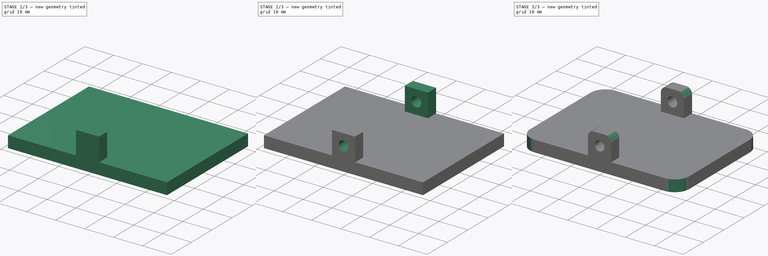
[diagram: build sequence overview — one tinted view per stage of 3, left to right]
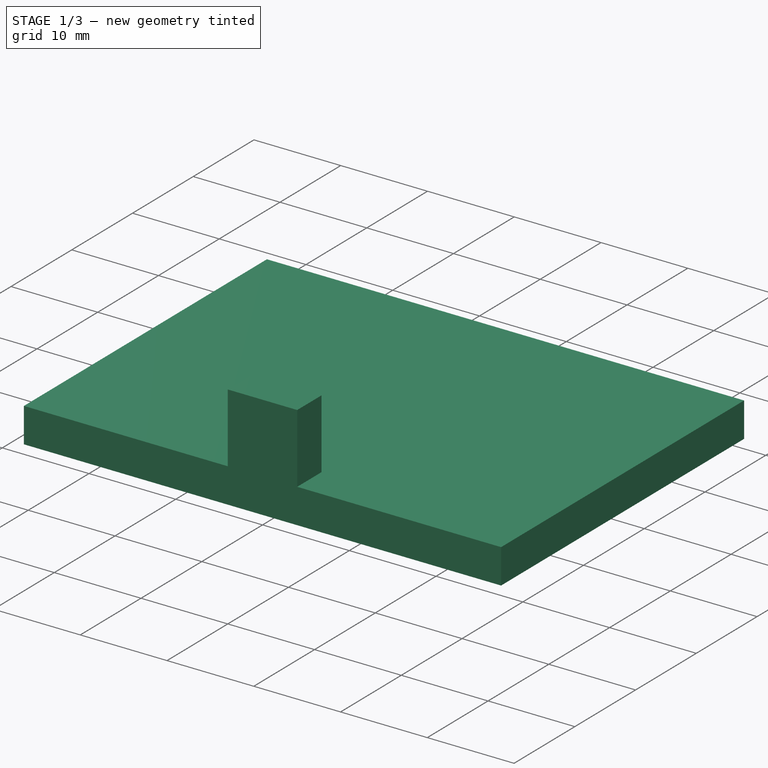
[diagram: stage 1 of 3 — iso view after this stage's code; geometry added in this stage tinted green]
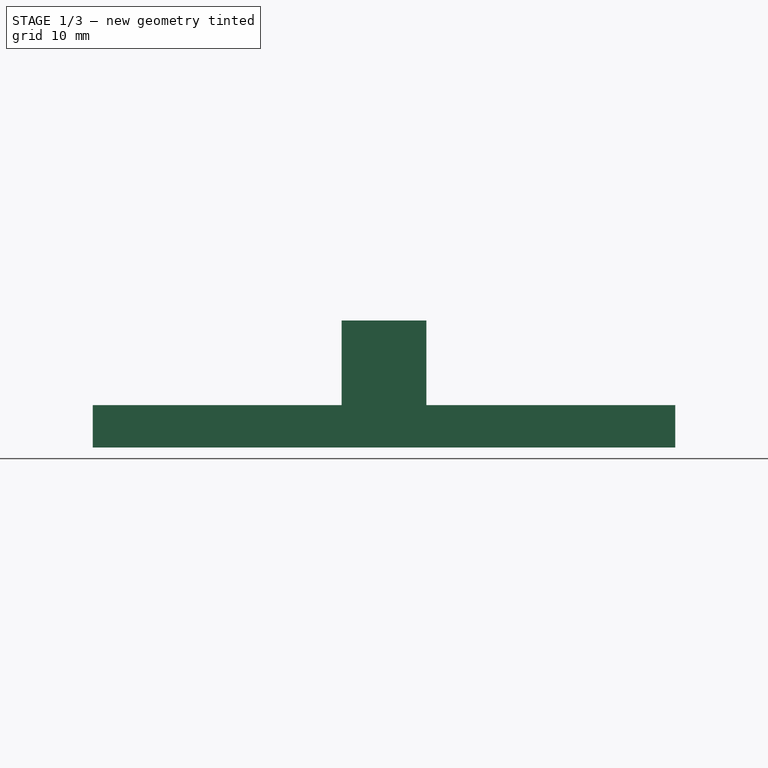
[diagram: stage 1 of 3 — front view after this stage's code; geometry added in this stage tinted green]
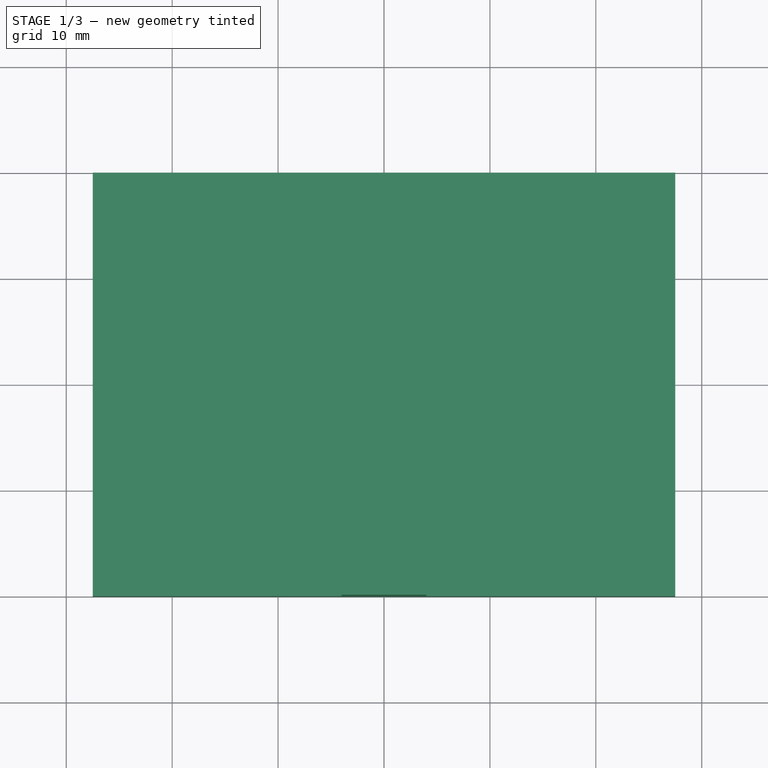
[diagram: stage 1 of 3 — top view after this stage's code; geometry added in this stage tinted green]
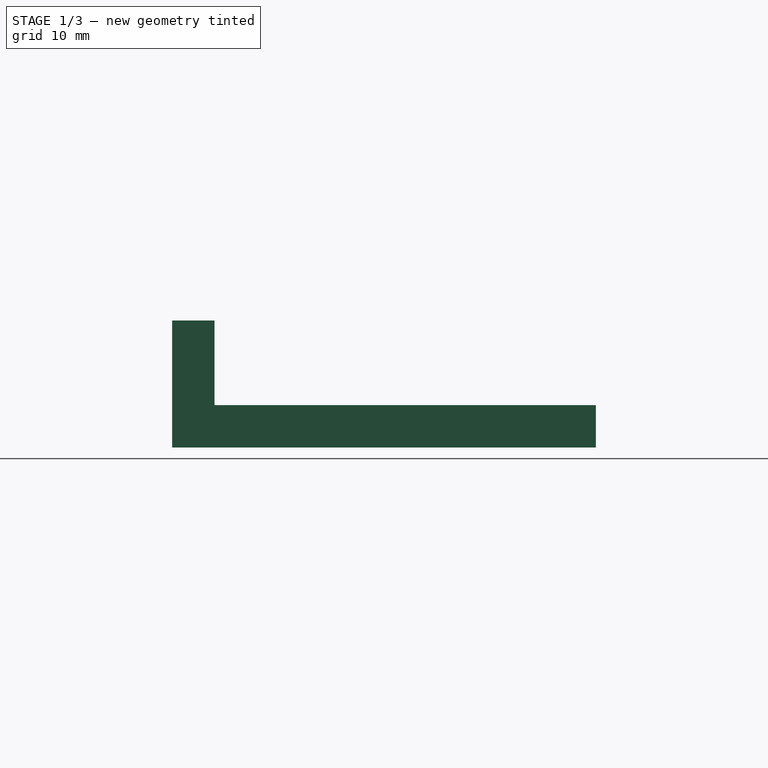
[diagram: stage 1 of 3 — right view after this stage's code; geometry added in this stage tinted green]
FCSTD DOCUMENT  (FreeCAD 0.16R6705 (Git))
Label: portacamere
License: All rights reserved
LicenseURL: http://it.wikipedia.org/wiki/<copyright redacted>
objects: Sketcher::SketchObject×4, PartDesign::Pad×3, PartDesign::Fillet×2, Part::Fuse×1, PartDesign::Pocket×1
note: 15 computed .brp shape members not serialized (recipe doc carries the construction recipe); baked Part::Feature solids carry a one-line shape summary decoded from their .brp

FEATURE [Sketcher::SketchObject] Sketch
  sketch-geometry (4):
    g0: LineSegment StartX=-27.5 StartY=20 StartZ=0 EndX=27.5 EndY=20 EndZ=0
    g1: LineSegment StartX=27.5 StartY=20 StartZ=0 EndX=27.5 EndY=-20 EndZ=0
    g2: LineSegment StartX=27.5 StartY=-20 StartZ=0 EndX=-27.5 EndY=-20 EndZ=0
    g3: LineSegment StartX=-27.5 StartY=-20 StartZ=0 EndX=-27.5 EndY=20 EndZ=0
  constraints (12):
    c: Coincident(g0,g1)
    c: Coincident(g1,g2)
    c: Coincident(g2,g3)
    c: Coincident(g3,g0)
    c: Horizontal(g0)
    c: Horizontal(g2)
    c: Vertical(g1)
    c: Vertical(g3)
    c: DistanceX(g0,g0) = 55
    c: DistanceY(g3,g3) = 40
    c: Symmetric(g0,g0,g-2)
    c: Symmetric(g0,g1,g-1)
FEATURE [PartDesign::Pad] Pad
  Length = 4
  Length2 = 100
  Sketch = -> Sketch
  Type = 0
FEATURE [PartDesign::Pad] Pad002
  Length = 8
  Length2 = 100
  Placement = pos=(0,0,4) rot=(0,0,1;0rad)
  Sketch = -> MirroredSketch
  Type = 0
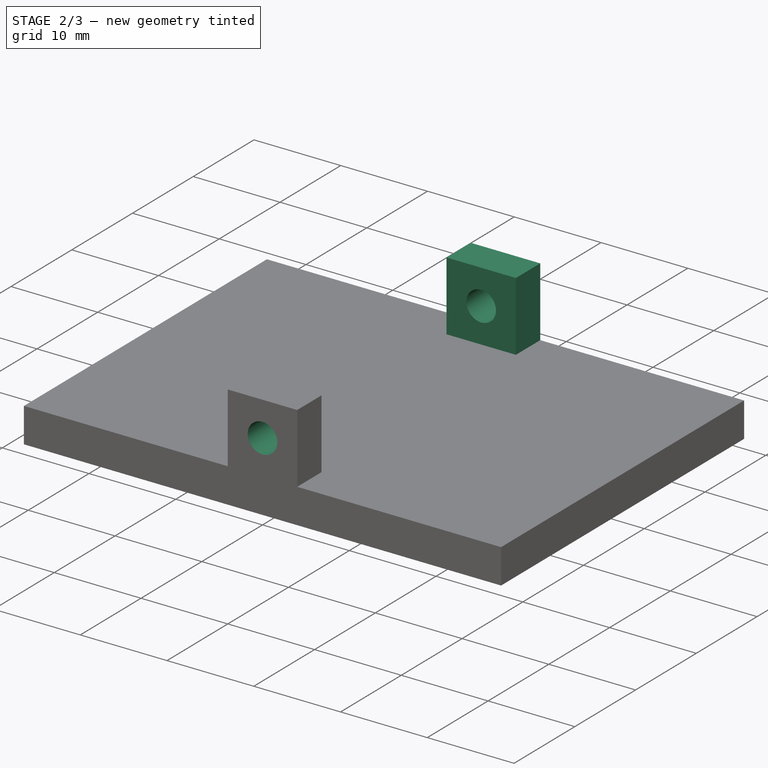
[diagram: stage 2 of 3 — iso view after this stage's code; geometry added in this stage tinted green]
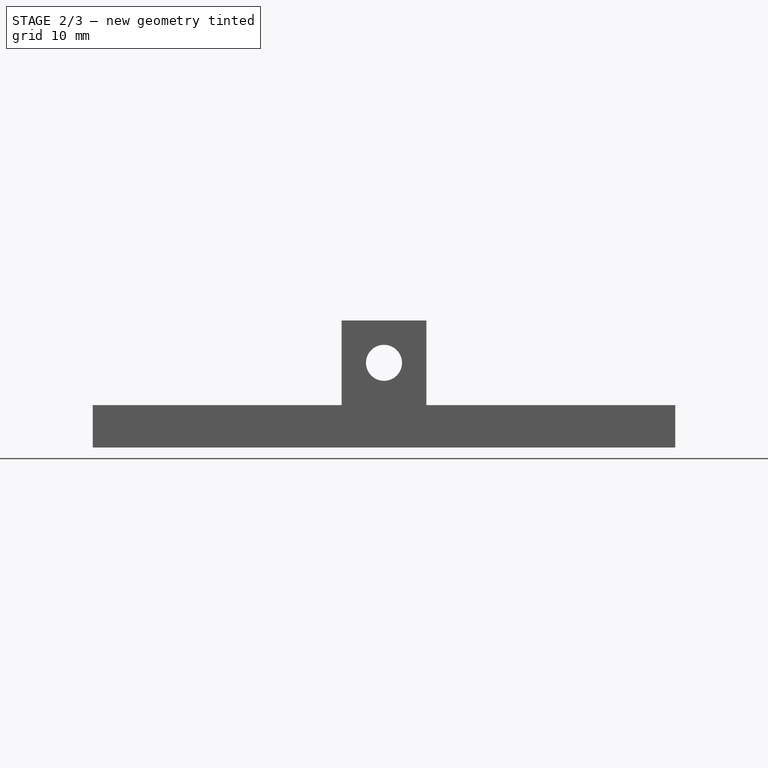
[diagram: stage 2 of 3 — front view after this stage's code; geometry added in this stage tinted green]
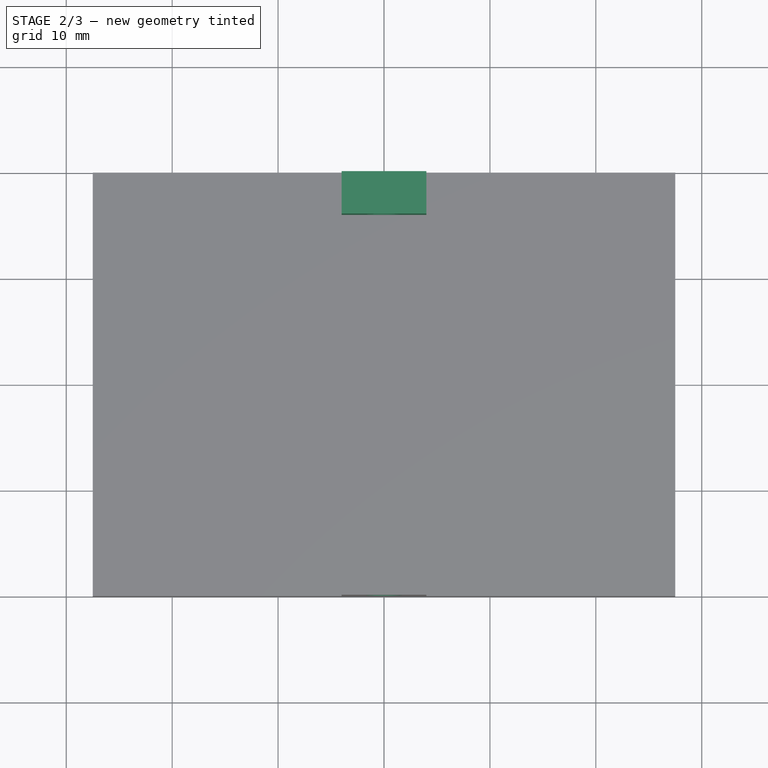
[diagram: stage 2 of 3 — top view after this stage's code; geometry added in this stage tinted green]
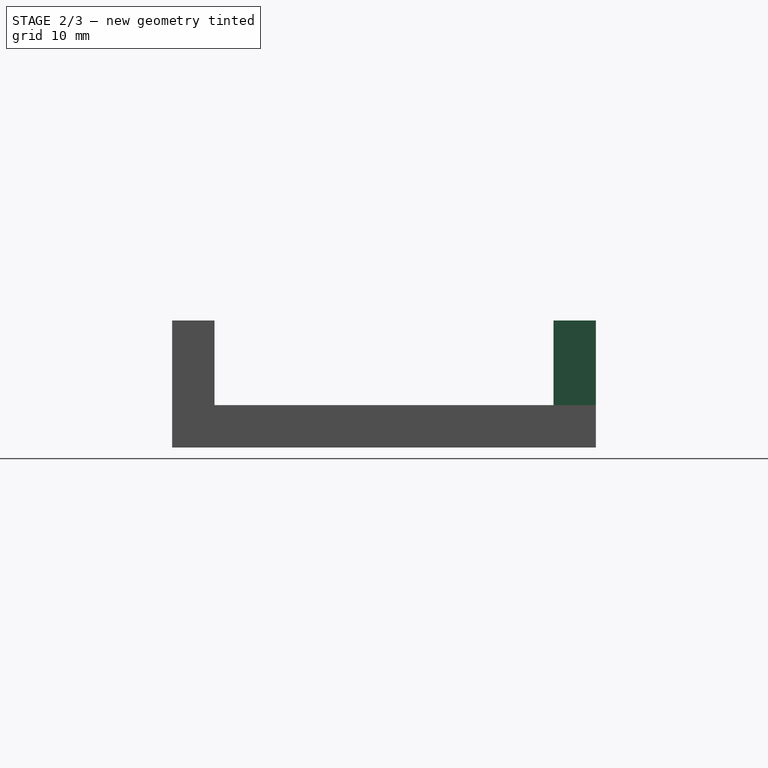
[diagram: stage 2 of 3 — right view after this stage's code; geometry added in this stage tinted green]
FEATURE [Sketcher::SketchObject] Sketch001
  ExternalGeometry = -> [Pad]
  Placement = pos=(0,0,4) rot=(0,0,1;0rad)
  Support = -> Pad [Face6]
  sketch-geometry (4):
    g0: LineSegment StartX=-4 StartY=20 StartZ=0 EndX=4 EndY=20 EndZ=0
    g1: LineSegment StartX=4 StartY=20 StartZ=0 EndX=4 EndY=16 EndZ=0
    g2: LineSegment StartX=4 StartY=16 StartZ=0 EndX=-4 EndY=16 EndZ=0
    g3: LineSegment StartX=-4 StartY=16 StartZ=0 EndX=-4 EndY=20 EndZ=0
  constraints (12):
    c: Coincident(g0,g1)
    c: Coincident(g1,g2)
    c: Coincident(g2,g3)
    c: Coincident(g3,g0)
    c: Horizontal(g0)
    c: Horizontal(g2)
    c: Vertical(g1)
    c: Vertical(g3)
    c: PointOnObject(g0,g-3)
    c: DistanceY(g1,g1) = 4
    c: Symmetric(g0,g0,g-2)
    c: DistanceX(g2,g2) = 8
FEATURE [Sketcher::SketchObject] MirroredSketch
  Placement = pos=(0,0,4) rot=(0,0,1;0rad)
  sketch-geometry (4):
    g0: LineSegment StartX=-4 StartY=-20 StartZ=0 EndX=4 EndY=-20 EndZ=0
    g1: LineSegment StartX=4 StartY=-20 StartZ=0 EndX=4 EndY=-16 EndZ=0
    g2: LineSegment StartX=4 StartY=-16 StartZ=0 EndX=-4 EndY=-16 EndZ=0
    g3: LineSegment StartX=-4 StartY=-16 StartZ=0 EndX=-4 EndY=-20 EndZ=0
  constraints (8):
    c: Coincident(g0,g1)
    c: Coincident(g1,g2)
    c: Coincident(g2,g3)
    c: Coincident(g3,g0)
    c: Horizontal(g0)
    c: Horizontal(g2)
    c: Vertical(g1)
    c: Vertical(g3)
FEATURE [PartDesign::Pad] Pad001
  Length = 8
  Length2 = 100
  Sketch = -> Sketch001
  Type = 0
FEATURE [Part::Fuse] Fusion
  Base = -> Pad001
  Tool = -> Pad002
FEATURE [Sketcher::SketchObject] Sketch002
  ExternalGeometry = -> [Pad002,Fusion]
  Placement = pos=(0,-20,0) rot=(1,0,0;1.5708rad)
  Support = -> Fusion [Face7]
  sketch-geometry (1):
    g0: Circle CenterX=0 CenterY=8 CenterZ=0 NormalX=0 NormalY=0 NormalZ=1 Radius=1.7
  constraints (3):
    c: PointOnObject(g0,g-2)
    c: Radius(g0) = 1.7
    c: DistanceY(g-4,g0) = 4
FEATURE [PartDesign::Pocket] Pocket
  Length = 5
  Sketch = -> Sketch002
  Type = 1
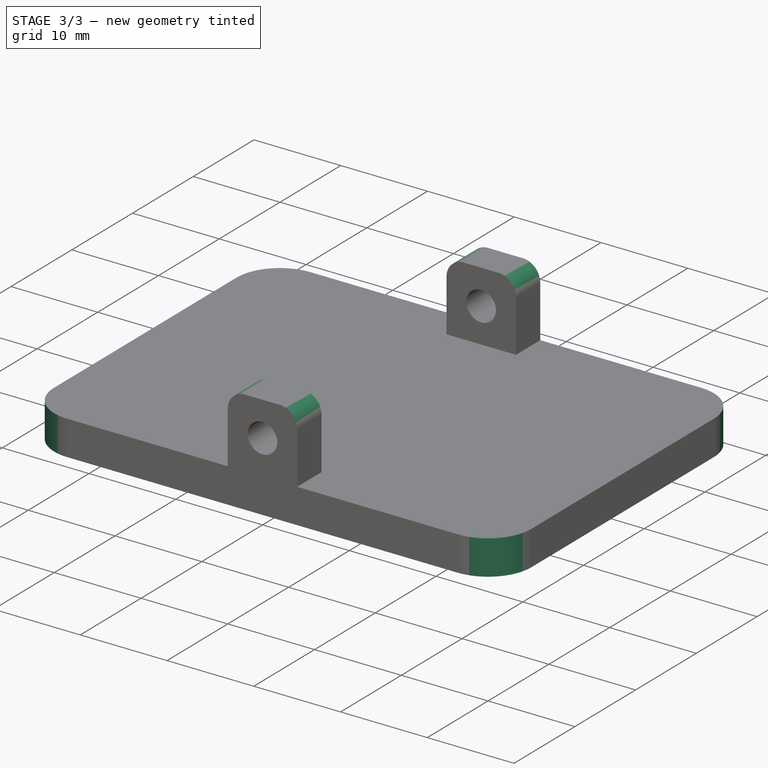
[diagram: stage 3 of 3 — iso view after this stage's code; geometry added in this stage tinted green]
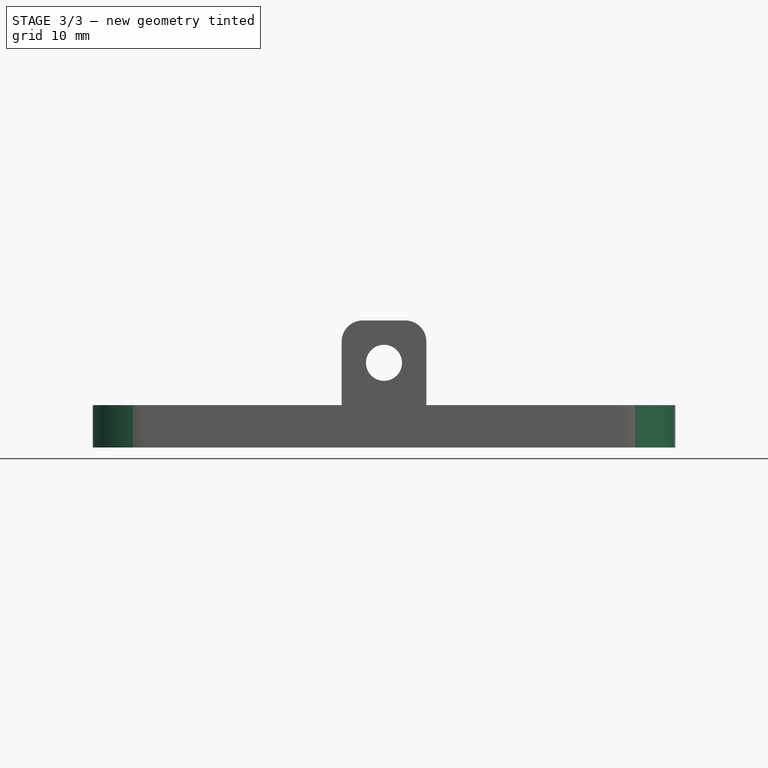
[diagram: stage 3 of 3 — front view after this stage's code; geometry added in this stage tinted green]
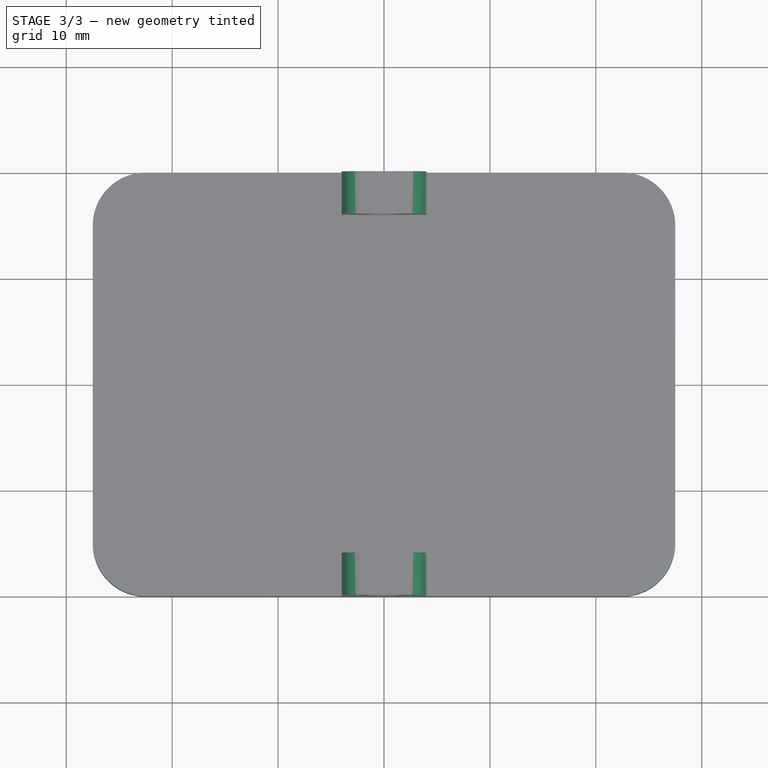
[diagram: stage 3 of 3 — top view after this stage's code; geometry added in this stage tinted green]
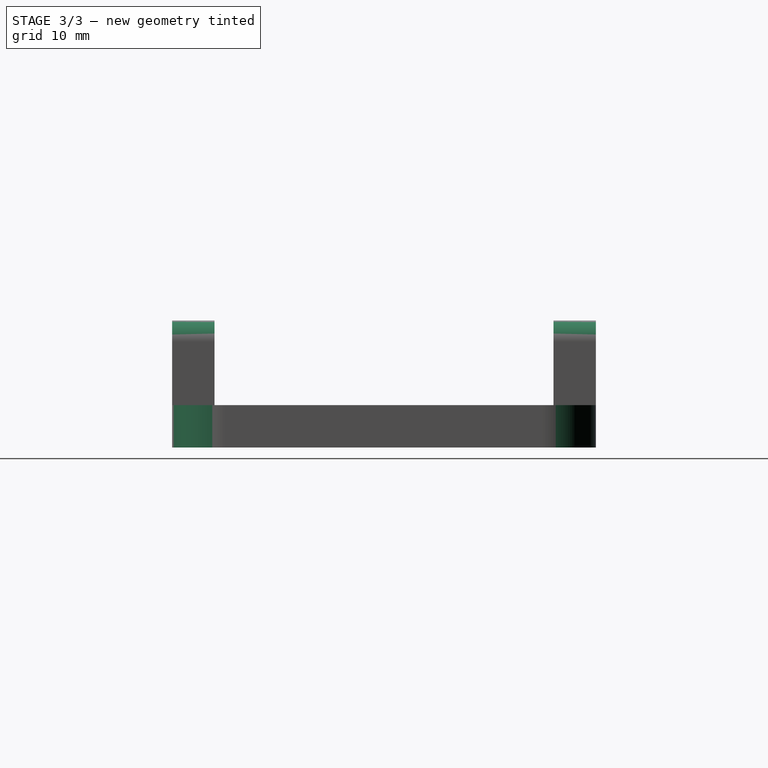
[diagram: stage 3 of 3 — right view after this stage's code; geometry added in this stage tinted green]
FEATURE [PartDesign::Fillet] Fillet
  Base = -> Pocket [Edge37,Edge42,Edge36,Edge32]
  Radius = 2
FEATURE [PartDesign::Fillet] Fillet001
  Base = -> Fillet [Edge34,Edge38,Edge13,Edge16]
  Radius = 5
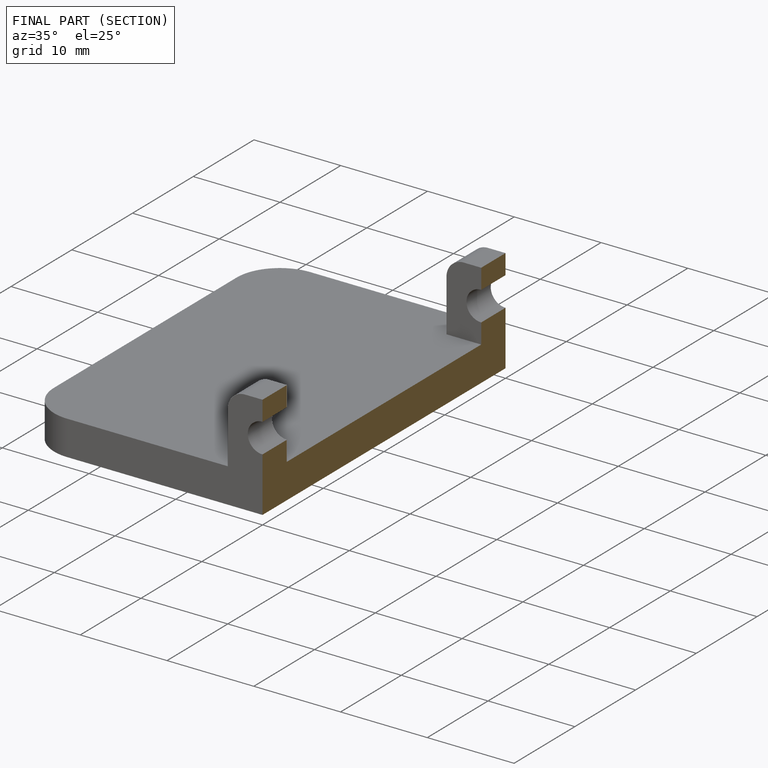
[diagram: finished part — half-section view (interior)]
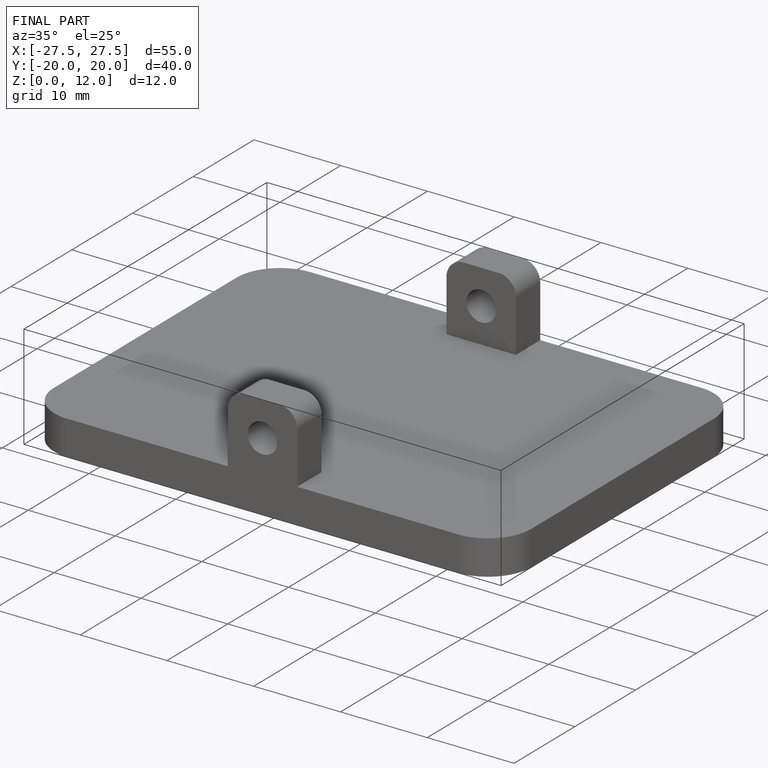
[diagram: finished part — iso view with bounding-box wireframe]
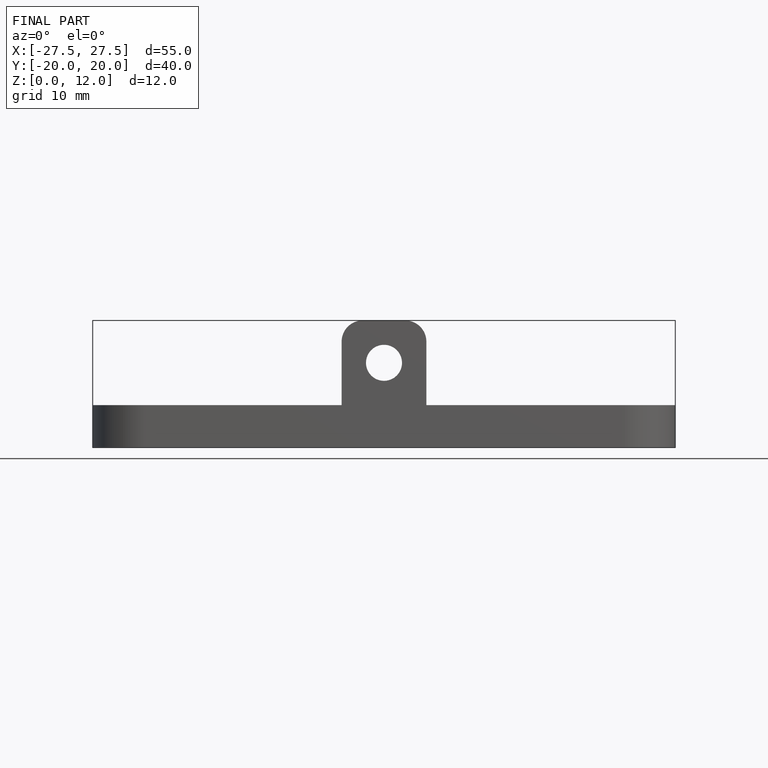
[diagram: finished part — front view with bounding-box wireframe]
